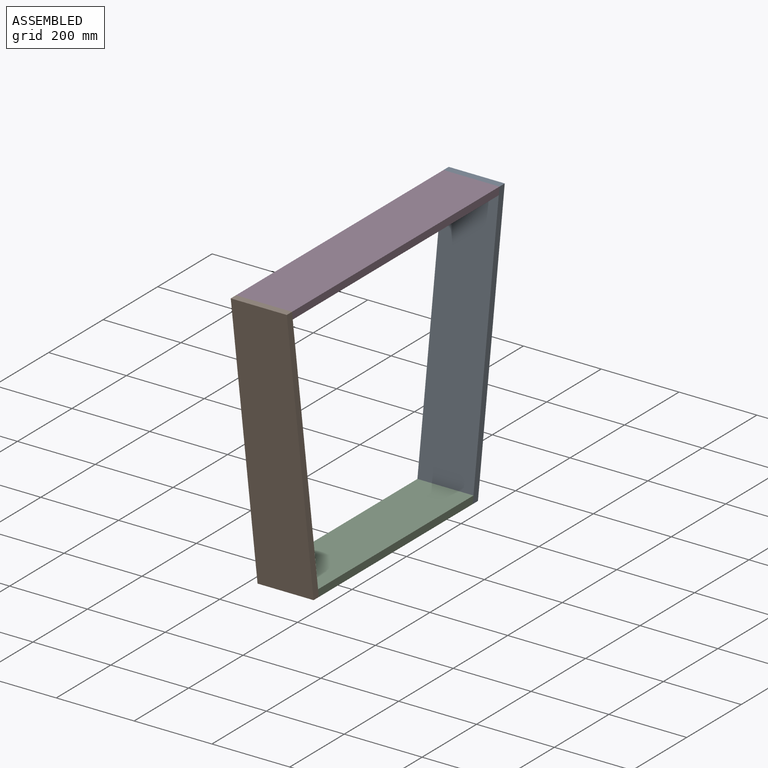
[diagram: assembled view]
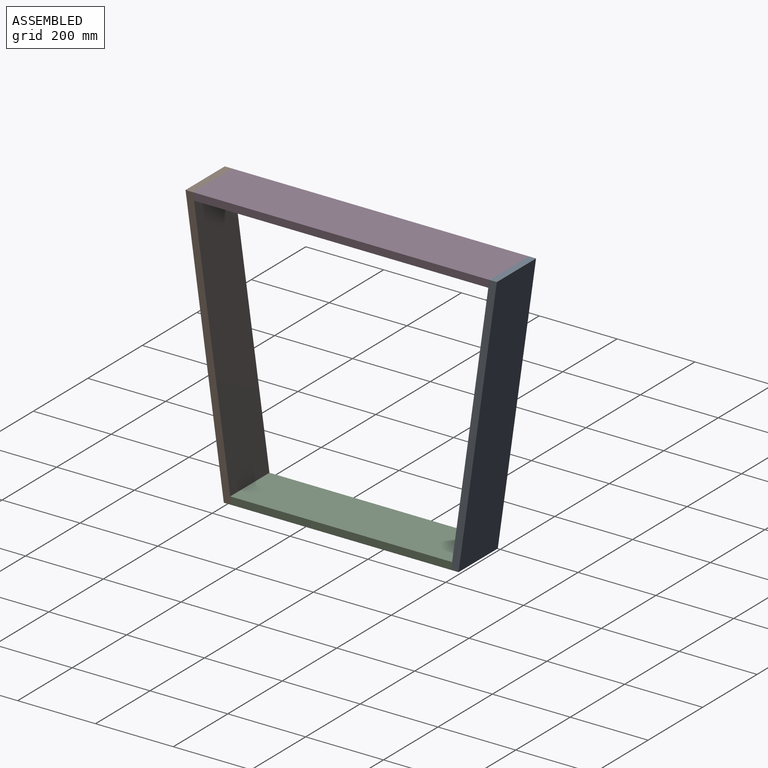
[diagram: assembled view, second angle]
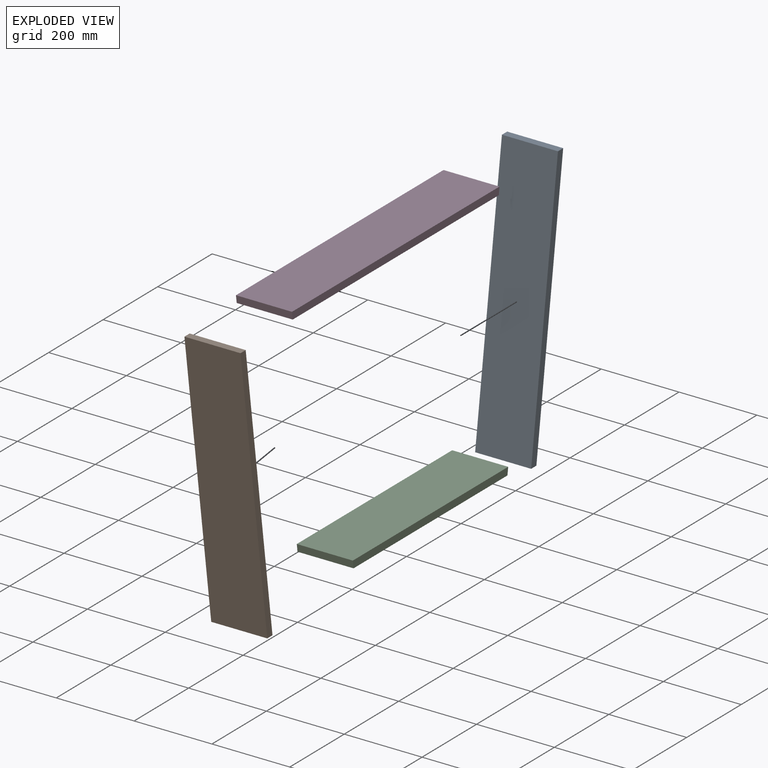
[diagram: exploded view]
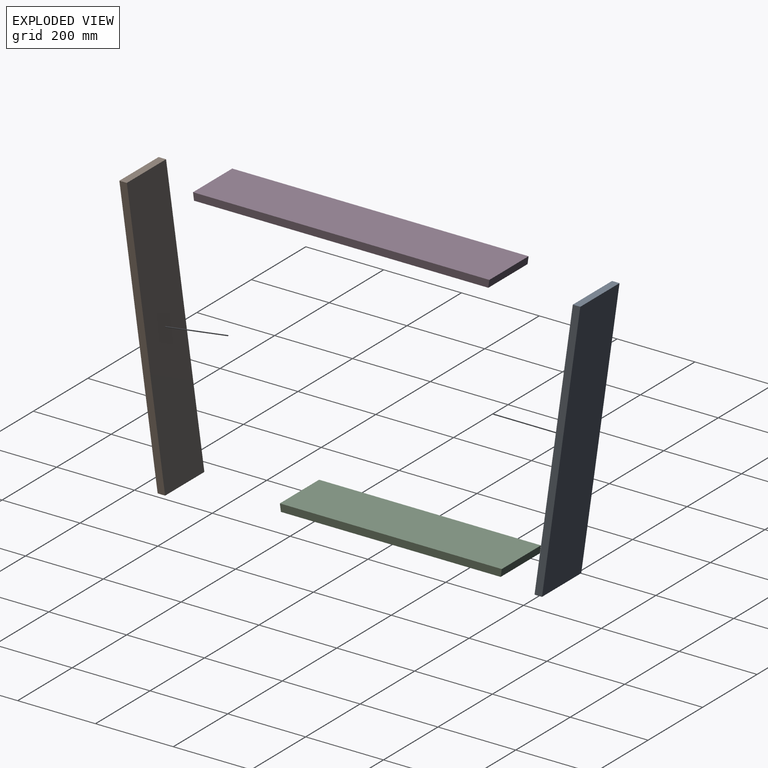
[diagram: exploded view, second angle]
ASSEMBLY  parts=4 mates=3
PART A: 6 faces, bbox 144x117.6x700 mm
  f0: plane 700x144mm, normal (0,-0.99,0.14), area 101790.6mm2, adj f1,f3,f4,f5
  f1: plane 144x19.19mm, normal (0,0,-1), area 2762.9mm2, adj f0,f2,f4,f5
  f2: plane 700x144mm, normal (0,0.99,-0.14), area 101790.6mm2, adj f1,f3,f4,f5
  f3: plane 144x19.19mm, normal (0,0,1), area 2762.9mm2, adj f0,f2,f4,f5
  f4: plane 700x117.57mm, normal (1,0,0), area 13430.7mm2, adj f0,f1,f2,f3
  f5: plane 700x117.57mm, normal (-1,0,0), area 13430.7mm2, adj f0,f1,f2,f3
PART B: 6 faces, bbox 144x117.6x700 mm
  f0: plane 700x144mm, normal (0,0.99,0.14), area 101790.6mm2, adj f1,f3,f4,f5
  f1: plane 144x19.19mm, normal (0,0,1), area 2762.9mm2, adj f0,f2,f4,f5
  f2: plane 700x144mm, normal (0,-0.99,-0.14), area 101790.6mm2, adj f1,f3,f4,f5
  f3: plane 144x19.19mm, normal (0,0,-1), area 2762.9mm2, adj f0,f2,f4,f5
  f4: plane 700x117.57mm, normal (1,0,0), area 13430.7mm2, adj f0,f1,f2,f3
  f5: plane 700x117.57mm, normal (-1,0,0), area 13430.7mm2, adj f0,f1,f2,f3
PART C: 6 faces, bbox 144x570.2x19 mm
  f0: plane 144x19mm, normal (0,-0.99,-0.14), area 2762.9mm2, adj f1,f3,f4,f5
  f1: plane 564.87x144mm, normal (0,0,-1), area 81341.2mm2, adj f0,f2,f4,f5
  f2: plane 144x19mm, normal (0,0.99,-0.14), area 2762.9mm2, adj f1,f3,f4,f5
  f3: plane 570.21x144mm, normal (0,0,1), area 82110.2mm2, adj f0,f2,f4,f5
  f4: plane 570.21x19mm, normal (1,0,0), area 10783.3mm2, adj f0,f1,f2,f3
  f5: plane 570.21x19mm, normal (-1,0,0), area 10783.3mm2, adj f0,f1,f2,f3
PART D: 6 faces, bbox 144x761.6x19 mm
  f0: plane 144x19mm, normal (0,0.99,-0.14), area 2762.9mm2, adj f1,f3,f4,f5
  f1: plane 761.63x144mm, normal (0,0,1), area 109674.2mm2, adj f0,f2,f4,f5
  f2: plane 144x19mm, normal (0,-0.99,-0.14), area 2762.9mm2, adj f1,f3,f4,f5
  f3: plane 756.29x144mm, normal (0,0,-1), area 108905.2mm2, adj f0,f2,f4,f5
  f4: plane 761.63x19mm, normal (1,0,0), area 14420.2mm2, adj f0,f1,f2,f3
  f5: plane 761.63x19mm, normal (-1,0,0), area 14420.2mm2, adj f0,f1,f2,f3
PLACE A t=(269.67,-1160.76,-222.77)mm
PLACE B t=(269.67,-1160.76,-222.77)mm
PLACE C t=(269.67,-1160.76,-222.77)mm
PLACE D t=(269.67,-1160.76,-222.77)mm
MATE fastened C.f0 <-> B.f0  axis (0,-0.99,-0.14) through (341.67,-341.57,-222.77)mm
MATE fastened D.f2 <-> B.f0  axis (0,-0.99,-0.14) through (341.67,-439.95,477.23)mm
MATE fastened C.f2 <-> A.f0  axis (0,0.99,-0.14) through (341.67,223.3,-222.77)mm
